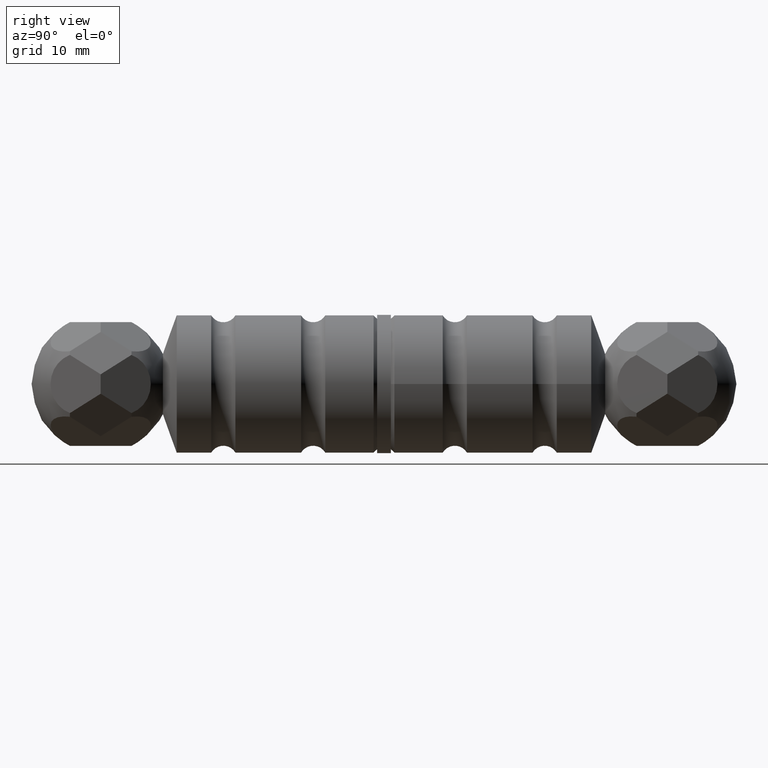
[diagram: clean part render]
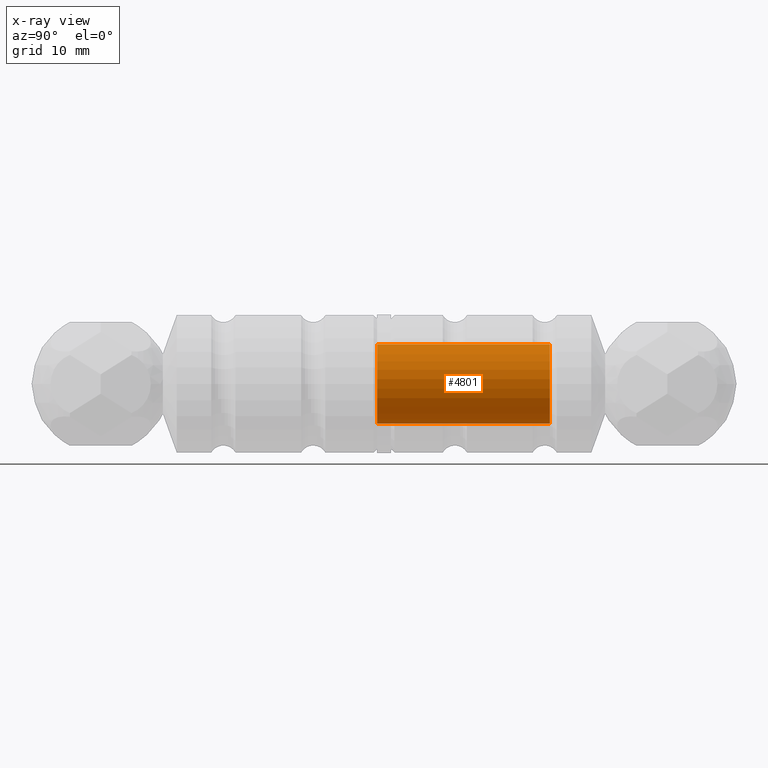
[diagram: x-ray — body ghosted, one internal face saturated and labeled with its STEP entity id]
A machine part, right view, then the same camera in x-ray: the body is ghosted and one INTERNAL B-rep face — a face not visible from any outside direction — is saturated and labeled: STEP entity #4801.
In plain terms, the highlighted cylindrical surface (bore or boss wall) has radius 5.75 mm, axis along (0, -1, 0).
Its self-contained STEP definition (entity closure, byte-faithful):
#27 = AXIS2_PLACEMENT_3D ( 'NONE', #1642, #10556, #10596 ) ;
#1053 = VERTEX_POINT ( 'NONE', #11642 ) ;
#1240 = CARTESIAN_POINT ( 'NONE',  ( 0.000000000000000000, -26.00000000000000000, -6.842277657836020854E-46 ) ) ;
#1642 = CARTESIAN_POINT ( 'NONE',  ( -3.081487911019577365E-30, -25.00000000000003908, 0.000000000000000000 ) ) ;
#2538 = CARTESIAN_POINT ( 'NONE',  ( -3.081487911019577365E-30, -25.00000000000003908, -5.750000000000000000 ) ) ;
#3245 = DIRECTION ( 'NONE',  ( -6.162975822039156098E-33, 1.000000000000000000, 0.000000000000000000 ) ) ;
#3972 = CYLINDRICAL_SURFACE ( 'NONE', #5314, 5.750000000000000000 ) ;
#4801 = ADVANCED_FACE ( 'NONE', ( #6119, #8293 ), #3972, .T. ) ;
#5097 = VERTEX_POINT ( 'NONE', #2538 ) ;
#5314 = AXIS2_PLACEMENT_3D ( 'NONE', #1240, #3245, #8076 ) ;
#5642 = DIRECTION ( 'NONE',  ( 1.109335647967047851E-31, -1.000000000000000000, 0.000000000000000000 ) ) ;
#6119 = FACE_OUTER_BOUND ( 'NONE', #11997, .T. ) ;
#6287 = AXIS2_PLACEMENT_3D ( 'NONE', #11468, #5642, #9567 ) ;
#6498 = CIRCLE ( 'NONE', #6287, 5.750000000000000000 ) ;
#7595 = CIRCLE ( 'NONE', #27, 5.750000000000000000 ) ;
#8076 = DIRECTION ( 'NONE',  ( 0.000000000000000000, 0.000000000000000000, 1.000000000000000000 ) ) ;
#8293 = FACE_OUTER_BOUND ( 'NONE', #10862, .T. ) ;
#8407 = ORIENTED_EDGE ( 'NONE', *, *, #12302, .T. ) ;
#9560 = EDGE_CURVE ( 'NONE', #5097, #5097, #7595, .T. ) ;
#9567 = DIRECTION ( 'NONE',  ( 0.000000000000000000, 0.000000000000000000, -1.000000000000000000 ) ) ;
#10556 = DIRECTION ( 'NONE',  ( -1.109335647967047851E-31, 1.000000000000000000, -0.000000000000000000 ) ) ;
#10596 = DIRECTION ( 'NONE',  ( 0.000000000000000000, 0.000000000000000000, -1.000000000000000000 ) ) ;
#10862 = EDGE_LOOP ( 'NONE', ( #8407 ) ) ;
#11468 = CARTESIAN_POINT ( 'NONE',  ( 0.000000000000000000, 0.000000000000000000, 0.000000000000000000 ) ) ;
#11642 = CARTESIAN_POINT ( 'NONE',  ( 0.000000000000000000, 0.000000000000000000, -5.750000000000000000 ) ) ;
#11912 = ORIENTED_EDGE ( 'NONE', *, *, #9560, .T. ) ;
#11997 = EDGE_LOOP ( 'NONE', ( #11912 ) ) ;
#12302 = EDGE_CURVE ( 'NONE', #1053, #1053, #6498, .T. ) ;